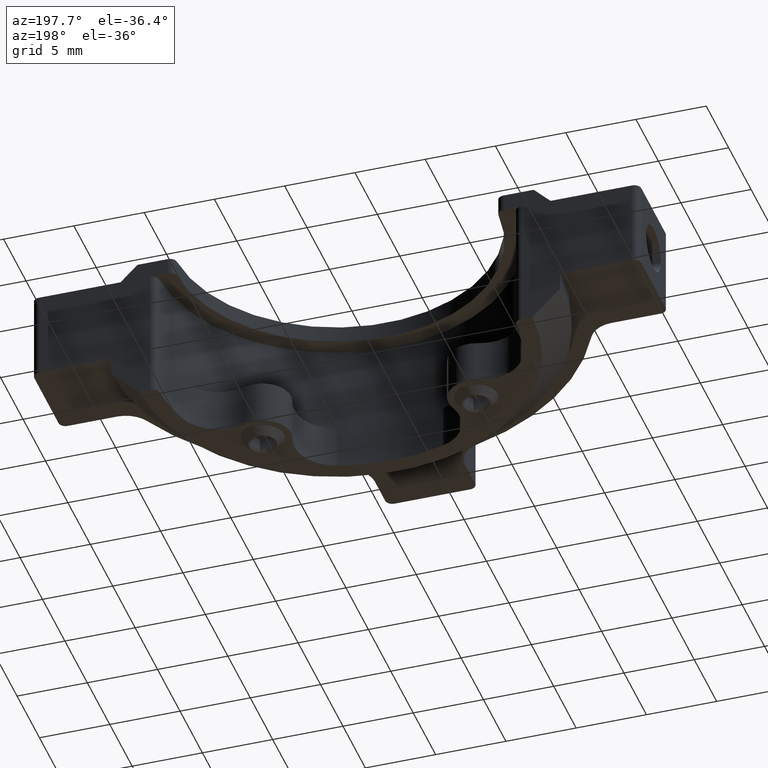
[diagram: clean part render]
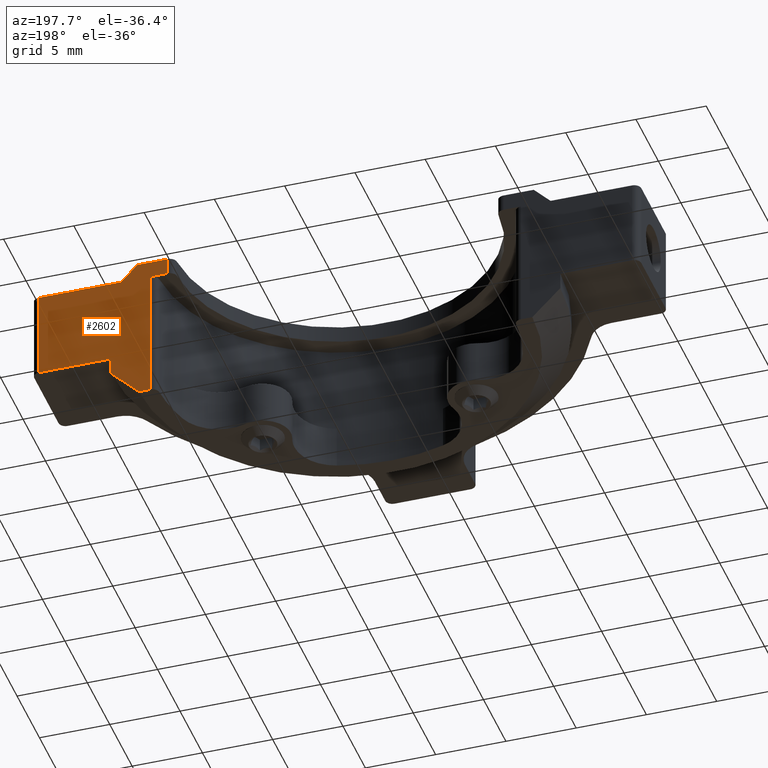
[diagram: same view with one face highlighted and labeled with its STEP entity id]
A machine part, auxiliary view. The second image highlights one B-rep face of the part: STEP entity #2602.
In plain terms, the highlighted planar face has unit normal (0, -1, 0).
Its self-contained STEP definition (entity closure, byte-faithful):
#12 = EDGE_CURVE ( 'NONE', #2263, #1634, #1295, .T. ) ;
#55 = VERTEX_POINT ( 'NONE', #2800 ) ;
#74 = CARTESIAN_POINT ( 'NONE',  ( 14.08352028902644371, 8.988821372047171465, 25.85000000000000853 ) ) ;
#154 = CARTESIAN_POINT ( 'NONE',  ( 11.27404719283129175, 8.988821372047167912, 23.85000000000000142 ) ) ;
#185 = CARTESIAN_POINT ( 'NONE',  ( 14.08352028902644371, 8.988821372047171465, 27.05000000000000426 ) ) ;
#339 = ORIENTED_EDGE ( 'NONE', *, *, #734, .T. ) ;
#428 = CARTESIAN_POINT ( 'NONE',  ( -1.916479710973556516, 8.988821372047167912, 9.850000000000092015 ) ) ;
#524 = LINE ( 'NONE', #1232, #2751 ) ;
#540 = CARTESIAN_POINT ( 'NONE',  ( 19.68352028902643980, 8.988821372047167912, 27.05000000000000426 ) ) ;
#565 = DIRECTION ( 'NONE',  ( -1.000000000000000000, -0.000000000000000000, -0.000000000000000000 ) ) ;
#580 = DIRECTION ( 'NONE',  ( -0.000000000000000000, 0.000000000000000000, 1.000000000000000000 ) ) ;
#582 = DIRECTION ( 'NONE',  ( -0.000000000000000000, -0.000000000000000000, -1.000000000000000000 ) ) ;
#592 = VERTEX_POINT ( 'NONE', #154 ) ;
#594 = DIRECTION ( 'NONE',  ( 0.000000000000000000, -1.000000000000000000, 0.000000000000000000 ) ) ;
#613 = EDGE_CURVE ( 'NONE', #55, #1634, #930, .T. ) ;
#697 = VECTOR ( 'NONE', #582, 1000.000000000000000 ) ;
#734 = EDGE_CURVE ( 'NONE', #1972, #747, #981, .T. ) ;
#747 = VERTEX_POINT ( 'NONE', #2137 ) ;
#750 = LINE ( 'NONE', #540, #1211 ) ;
#751 = DIRECTION ( 'NONE',  ( 0.7071067811865489050, -0.000000000000000000, -0.7071067811865460184 ) ) ;
#769 = EDGE_CURVE ( 'NONE', #2459, #2263, #524, .T. ) ;
#801 = ORIENTED_EDGE ( 'NONE', *, *, #1274, .T. ) ;
#813 = CARTESIAN_POINT ( 'NONE',  ( -23.51647971097355949, 8.988821372047167912, 34.55000000000000426 ) ) ;
#815 = LINE ( 'NONE', #1763, #697 ) ;
#847 = EDGE_CURVE ( 'NONE', #55, #937, #2157, .T. ) ;
#903 = CARTESIAN_POINT ( 'NONE',  ( -23.51647971097355949, 8.988821372047167912, 34.55000000000000426 ) ) ;
#930 = LINE ( 'NONE', #903, #1293 ) ;
#937 = VERTEX_POINT ( 'NONE', #2520 ) ;
#953 = EDGE_CURVE ( 'NONE', #2508, #2639, #815, .T. ) ;
#968 = ORIENTED_EDGE ( 'NONE', *, *, #847, .T. ) ;
#981 = LINE ( 'NONE', #3111, #1092 ) ;
#1028 = LINE ( 'NONE', #1292, #1391 ) ;
#1092 = VECTOR ( 'NONE', #1701, 1000.000000000000000 ) ;
#1097 = VECTOR ( 'NONE', #580, 1000.000000000000000 ) ;
#1154 = DIRECTION ( 'NONE',  ( -1.000000000000000000, -0.000000000000000000, -0.000000000000000000 ) ) ;
#1211 = VECTOR ( 'NONE', #2612, 1000.000000000000000 ) ;
#1232 = CARTESIAN_POINT ( 'NONE',  ( -23.51647971097355949, 8.988821372047167912, 33.35000000000000142 ) ) ;
#1274 = EDGE_CURVE ( 'NONE', #2480, #592, #1028, .T. ) ;
#1279 = PLANE ( 'NONE',  #1610 ) ;
#1292 = CARTESIAN_POINT ( 'NONE',  ( -23.51647971097355949, 8.988821372047167912, 23.85000000000000142 ) ) ;
#1293 = VECTOR ( 'NONE', #1154, 1000.000000000000000 ) ;
#1295 = LINE ( 'NONE', #3014, #1097 ) ;
#1355 = CARTESIAN_POINT ( 'NONE',  ( 10.02305545585767810, 8.988821372047167912, 34.55000000000000426 ) ) ;
#1365 = DIRECTION ( 'NONE',  ( -0.7071067811865493491, -0.000000000000000000, -0.7071067811865456854 ) ) ;
#1391 = VECTOR ( 'NONE', #565, 1000.000000000000000 ) ;
#1447 = CARTESIAN_POINT ( 'NONE',  ( -1.916479710973556516, 8.988821372047167912, 48.64999999999993463 ) ) ;
#1480 = ORIENTED_EDGE ( 'NONE', *, *, #2783, .T. ) ;
#1607 = CARTESIAN_POINT ( 'NONE',  ( 12.08352028902641706, 8.988821372047167912, 23.85000000000000142 ) ) ;
#1610 = AXIS2_PLACEMENT_3D ( 'NONE', #813, #594, #1749 ) ;
#1634 = VERTEX_POINT ( 'NONE', #1355 ) ;
#1658 = CARTESIAN_POINT ( 'NONE',  ( 10.02305545585769053, 8.988821372047167912, 33.35000000000000142 ) ) ;
#1701 = DIRECTION ( 'NONE',  ( 0.000000000000000000, 0.000000000000000000, -1.000000000000000000 ) ) ;
#1717 = ORIENTED_EDGE ( 'NONE', *, *, #2127, .T. ) ;
#1719 = ORIENTED_EDGE ( 'NONE', *, *, #2797, .F. ) ;
#1739 = CARTESIAN_POINT ( 'NONE',  ( 11.27404719283130952, 8.988821372047167912, 33.35000000000000142 ) ) ;
#1749 = DIRECTION ( 'NONE',  ( 0.000000000000000000, -0.000000000000000000, -1.000000000000000000 ) ) ;
#1763 = CARTESIAN_POINT ( 'NONE',  ( 14.08352028902644371, 8.988821372047171465, 27.05000000000000426 ) ) ;
#1866 = LINE ( 'NONE', #428, #2772 ) ;
#1938 = CARTESIAN_POINT ( 'NONE',  ( 19.18352028902643980, 8.988821372047167912, 33.35000000000000142 ) ) ;
#1956 = VECTOR ( 'NONE', #2701, 1000.000000000000000 ) ;
#1958 = ORIENTED_EDGE ( 'NONE', *, *, #953, .T. ) ;
#1972 = VERTEX_POINT ( 'NONE', #1938 ) ;
#1983 = ORIENTED_EDGE ( 'NONE', *, *, #613, .F. ) ;
#1989 = EDGE_LOOP ( 'NONE', ( #801, #1717, #2884, #3084, #1983, #968, #1719, #339, #3113, #1958, #1480 ) ) ;
#2057 = LINE ( 'NONE', #3063, #3082 ) ;
#2127 = EDGE_CURVE ( 'NONE', #592, #2459, #2946, .T. ) ;
#2137 = CARTESIAN_POINT ( 'NONE',  ( 19.18352028902643980, 8.988821372047167912, 27.05000000000000426 ) ) ;
#2157 = LINE ( 'NONE', #1447, #2908 ) ;
#2187 = DIRECTION ( 'NONE',  ( -1.000000000000000000, 0.000000000000000000, 0.000000000000000000 ) ) ;
#2263 = VERTEX_POINT ( 'NONE', #1658 ) ;
#2459 = VERTEX_POINT ( 'NONE', #2596 ) ;
#2480 = VERTEX_POINT ( 'NONE', #1607 ) ;
#2508 = VERTEX_POINT ( 'NONE', #185 ) ;
#2520 = CARTESIAN_POINT ( 'NONE',  ( 13.38352028902644442, 8.988821372047175018, 33.35000000000000142 ) ) ;
#2562 = EDGE_CURVE ( 'NONE', #2508, #747, #750, .T. ) ;
#2596 = CARTESIAN_POINT ( 'NONE',  ( 11.27404719283130596, 8.988821372047167912, 33.35000000000000142 ) ) ;
#2602 = ADVANCED_FACE ( 'NONE', ( #3002 ), #1279, .F. ) ;
#2612 = DIRECTION ( 'NONE',  ( 1.000000000000000000, -3.097720492815728645E-16, -0.000000000000000000 ) ) ;
#2639 = VERTEX_POINT ( 'NONE', #74 ) ;
#2701 = DIRECTION ( 'NONE',  ( 0.000000000000000000, 0.000000000000000000, 1.000000000000000000 ) ) ;
#2751 = VECTOR ( 'NONE', #2187, 1000.000000000000000 ) ;
#2772 = VECTOR ( 'NONE', #1365, 1000.000000000000114 ) ;
#2783 = EDGE_CURVE ( 'NONE', #2639, #2480, #1866, .T. ) ;
#2797 = EDGE_CURVE ( 'NONE', #1972, #937, #2057, .T. ) ;
#2800 = CARTESIAN_POINT ( 'NONE',  ( 12.18352028902642026, 8.988821372047167912, 34.55000000000000426 ) ) ;
#2884 = ORIENTED_EDGE ( 'NONE', *, *, #769, .T. ) ;
#2908 = VECTOR ( 'NONE', #751, 1000.000000000000114 ) ;
#2946 = LINE ( 'NONE', #1739, #1956 ) ;
#3002 = FACE_OUTER_BOUND ( 'NONE', #1989, .T. ) ;
#3014 = CARTESIAN_POINT ( 'NONE',  ( 10.02305545585769053, 8.988821372047167912, 34.55000000000000426 ) ) ;
#3032 = DIRECTION ( 'NONE',  ( -1.000000000000000000, -2.753529326947314406E-16, 0.000000000000000000 ) ) ;
#3063 = CARTESIAN_POINT ( 'NONE',  ( 19.68352028902643980, 8.988821372047167912, 33.35000000000000142 ) ) ;
#3082 = VECTOR ( 'NONE', #3032, 1000.000000000000000 ) ;
#3084 = ORIENTED_EDGE ( 'NONE', *, *, #12, .T. ) ;
#3111 = CARTESIAN_POINT ( 'NONE',  ( 19.18352028902643980, 8.988821372047167912, 34.55000000000000426 ) ) ;
#3113 = ORIENTED_EDGE ( 'NONE', *, *, #2562, .F. ) ;